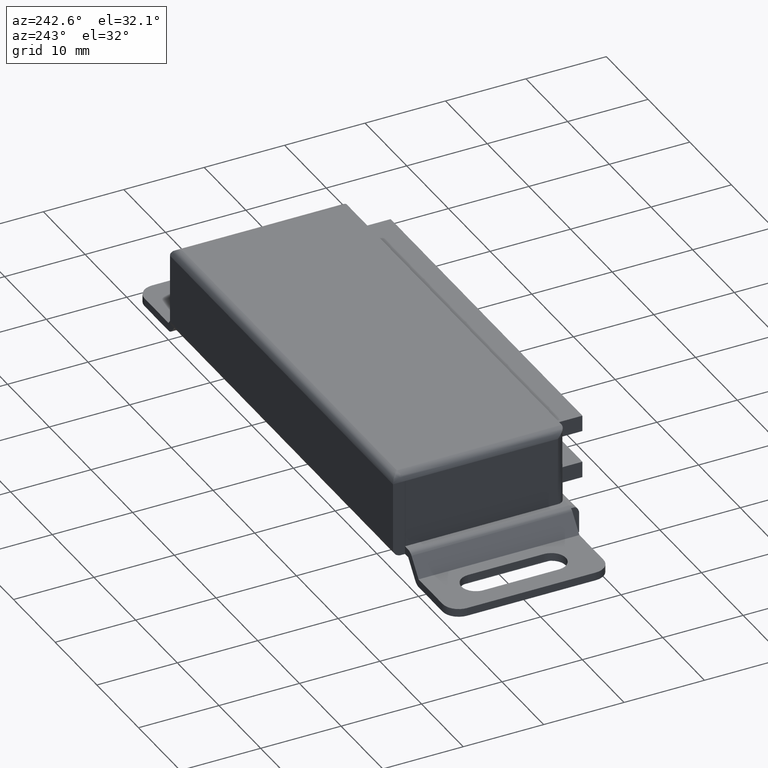
[diagram: clean part render]
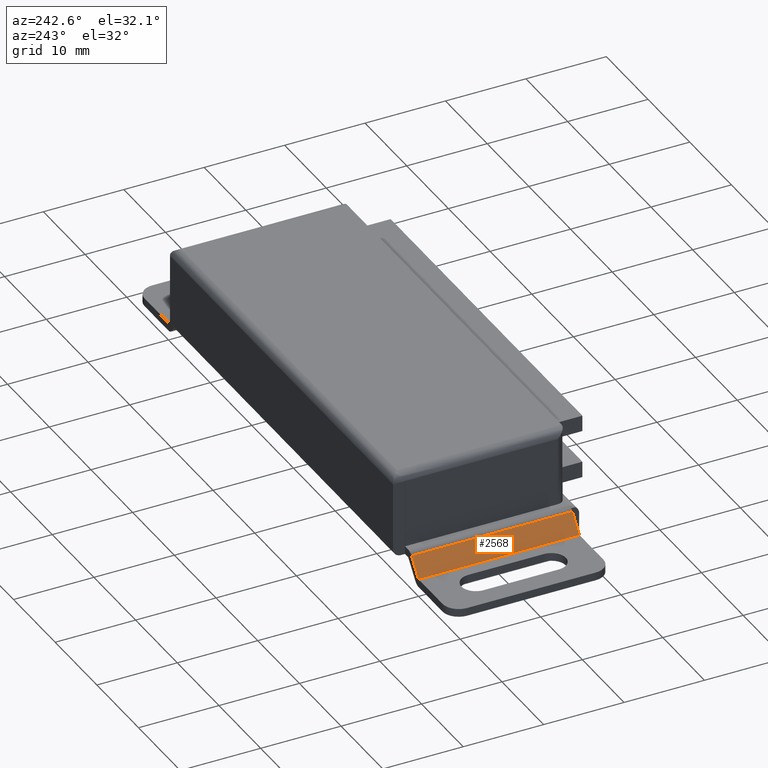
[diagram: same view with one face highlighted and labeled with its STEP entity id]
A machine part, auxiliary view. The second image highlights one B-rep face of the part: STEP entity #2568.
In plain terms, the highlighted face is a freeform B-spline surface patch.
Its self-contained STEP definition (entity closure, byte-faithful):
#1793=CARTESIAN_POINT('',(-28.300218879065749,3.469447E-015,3.124694151168330));
#1794=VERTEX_POINT('',#1793);
#1804=CARTESIAN_POINT('',(-28.300218879065749,-20.0,3.124694151168330));
#1805=VERTEX_POINT('',#1804);
#1806=CARTESIAN_POINT('',(-28.300218879065749,-20.0,3.124694151168330));
#1807=CARTESIAN_POINT('',(-28.300218879065749,3.469447E-015,3.124694151168330));
#1808=QUASI_UNIFORM_CURVE('',1,(#1806,#1807),.UNSPECIFIED.,.F.,.U.);
#1809=EDGE_CURVE('',#1805,#1794,#1808,.T.);
#2518=CARTESIAN_POINT('',(-29.999970200030202,-20.0,1.0));
#2519=VERTEX_POINT('',#2518);
#2525=CARTESIAN_POINT('',(-29.999970200030202,0.0,1.0));
#2526=VERTEX_POINT('',#2525);
#2527=CARTESIAN_POINT('',(-29.999970200030202,0.0,1.0));
#2528=CARTESIAN_POINT('',(-29.999970200030202,-20.0,1.0));
#2529=QUASI_UNIFORM_CURVE('',1,(#2527,#2528),.UNSPECIFIED.,.F.,.U.);
#2530=EDGE_CURVE('',#2526,#2519,#2529,.T.);
#2549=CARTESIAN_POINT('',(-30.084872488009040,-20.998999961236120,0.893871890279160));
#2550=CARTESIAN_POINT('',(-28.215316271950709,-20.998999961236120,3.230822659810318));
#2551=CARTESIAN_POINT('',(-30.084872488009040,0.999000497677926,0.893871890279160));
#2552=CARTESIAN_POINT('',(-28.215316271950709,0.999000497677926,3.230822659810318));
#2553=B_SPLINE_SURFACE_WITH_KNOTS('',1,1,((#2549,#2551),(#2550,#2552)),.UNSPECIFIED.,.F.,.F.,.U.,(2,2),(2,2),(0.0,2.992754474428971),(0.0,21.998000458914049),.UNSPECIFIED.);
#2554=CARTESIAN_POINT('',(-28.300218879065749,-20.0,3.124694151168330));
#2555=CARTESIAN_POINT('',(-29.999970200030202,-20.0,1.0));
#2556=QUASI_UNIFORM_CURVE('',1,(#2554,#2555),.UNSPECIFIED.,.F.,.U.);
#2557=EDGE_CURVE('',#1805,#2519,#2556,.T.);
#2558=ORIENTED_EDGE('',*,*,#2557,.F.);
#2559=ORIENTED_EDGE('',*,*,#1809,.T.);
#2560=CARTESIAN_POINT('',(-28.300218879065749,3.469447E-015,3.124694151168330));
#2561=CARTESIAN_POINT('',(-29.999970200030202,0.0,1.0));
#2562=QUASI_UNIFORM_CURVE('',1,(#2560,#2561),.UNSPECIFIED.,.F.,.U.);
#2563=EDGE_CURVE('',#1794,#2526,#2562,.T.);
#2564=ORIENTED_EDGE('',*,*,#2563,.T.);
#2565=ORIENTED_EDGE('',*,*,#2530,.T.);
#2566=EDGE_LOOP('',(#2558,#2559,#2564,#2565));
#2567=FACE_OUTER_BOUND('',#2566,.T.);
#2568=ADVANCED_FACE('',(#2567),#2553,.T.);